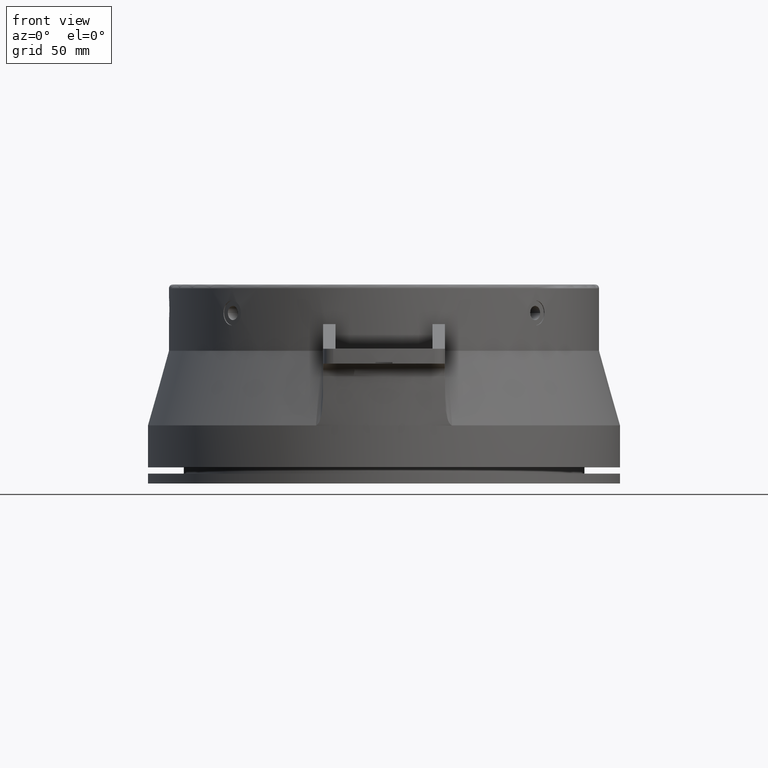
[diagram: clean part render]
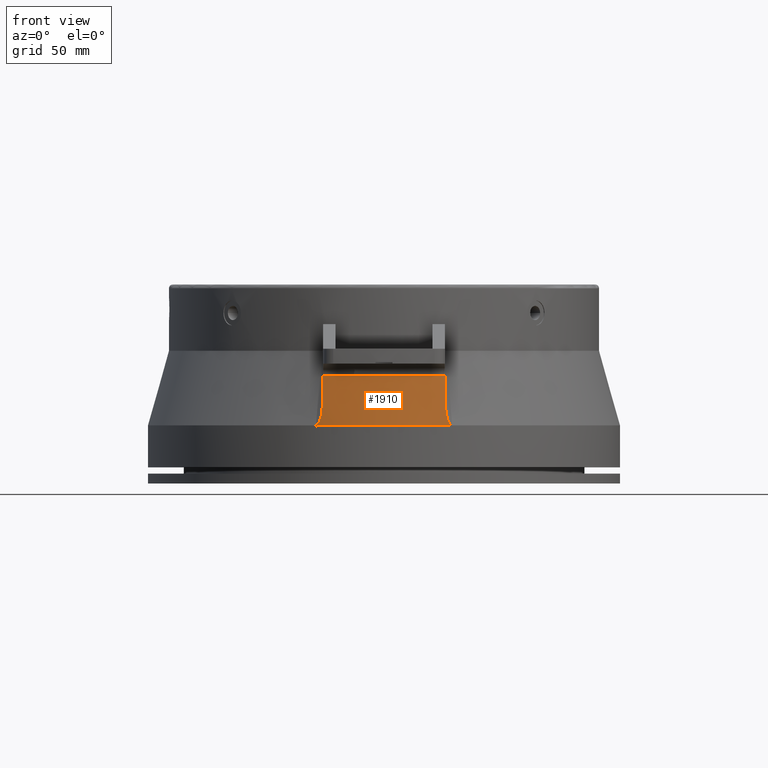
[diagram: same view with one face highlighted and labeled with its STEP entity id]
A machine part, front view. The second image highlights one B-rep face of the part: STEP entity #1910.
In plain terms, the highlighted conical surface has half-angle 0.72 deg.
Its self-contained STEP definition (entity closure, byte-faithful):
#447=CARTESIAN_POINT('',(0.E0,0.E0,-1.14E2));
#448=DIRECTION('',(0.E0,0.E0,-1.E0));
#449=DIRECTION('',(2.881513109847E-1,-9.575848902201E-1,0.E0));
#450=AXIS2_PLACEMENT_3D('',#447,#448,#449);
#452=CARTESIAN_POINT('',(-4.927189282601E1,-1.840168732729E2,
-7.412559506044E1));
#453=CARTESIAN_POINT('',(-4.927189282601E1,-1.839729857034E2,
-7.075039669329E1));
#454=CARTESIAN_POINT('',(-4.927189282601E1,-1.839290970838E2,
-6.737519833980E1));
#455=CARTESIAN_POINT('',(-4.927189282601E1,-1.838852074118E2,-6.4E1));
#457=CARTESIAN_POINT('',(0.E0,0.E0,-7.412559506044E1));
#458=DIRECTION('',(0.E0,0.E0,1.E0));
#459=DIRECTION('',(-2.586462503534E-1,-9.659721099380E-1,0.E0));
#460=AXIS2_PLACEMENT_3D('',#457,#458,#459);
#462=CARTESIAN_POINT('',(4.927189282601E1,-1.840168732729E2,-7.412559506044E1));
#463=CARTESIAN_POINT('',(4.927189282601E1,-1.839729857034E2,-7.075039669329E1));
#464=CARTESIAN_POINT('',(4.927189282601E1,-1.839290970838E2,-6.737519833980E1));
#465=CARTESIAN_POINT('',(4.927189282601E1,-1.838852074118E2,-6.4E1));
#467=CARTESIAN_POINT('',(-4.936022135901E1,-1.842148539848E2,
-9.117052137413E1));
#468=CARTESIAN_POINT('',(-4.936275388886E1,-1.842243055147E2,
-9.194954659659E1));
#469=CARTESIAN_POINT('',(-4.938722427807E1,-1.842370770525E2,
-9.343583555367E1));
#470=CARTESIAN_POINT('',(-4.946643944703E1,-1.842418751561E2,
-9.543851961199E1));
#471=CARTESIAN_POINT('',(-4.957705049600E1,-1.842356960701E2,
-9.724891391206E1));
#472=CARTESIAN_POINT('',(-4.971102670938E1,-1.842209173090E2,
-9.888773032615E1));
#473=CARTESIAN_POINT('',(-4.986302530540E1,-1.841992597248E2,
-1.003802037886E2));
#474=CARTESIAN_POINT('',(-5.002986918941E1,-1.841718479547E2,
-1.017500597064E2));
#475=CARTESIAN_POINT('',(-5.021078430044E1,-1.841391930582E2,
-1.030236272126E2));
#476=CARTESIAN_POINT('',(-5.040546425020E1,-1.841015360608E2,
-1.042164461202E2));
#477=CARTESIAN_POINT('',(-5.061108814689E1,-1.840595553720E2,
-1.053247020777E2));
#478=CARTESIAN_POINT('',(-5.082541242848E1,-1.840138427794E2,
-1.063493049520E2));
#479=CARTESIAN_POINT('',(-5.104610705530E1,-1.839650164738E2,
-1.072906590384E2));
#480=CARTESIAN_POINT('',(-5.127066002444E1,-1.839137544356E2,
-1.081490345887E2));
#481=CARTESIAN_POINT('',(-5.149678005388E1,-1.838607089374E2,
-1.089264351978E2));
#482=CARTESIAN_POINT('',(-5.172504748630E1,-1.838058522109E2,
-1.096337393959E2));
#483=CARTESIAN_POINT('',(-5.195720791249E1,-1.837488227047E2,
-1.102817950340E2));
#484=CARTESIAN_POINT('',(-5.219626341165E1,-1.836888925411E2,
-1.108813540732E2));
#485=CARTESIAN_POINT('',(-5.244814525993E1,-1.836245007277E2,
-1.114449047804E2));
#486=CARTESIAN_POINT('',(-5.271398488026E1,-1.835552216726E2,
-1.119692994043E2));
#487=CARTESIAN_POINT('',(-5.299401381358E1,-1.834808533548E2,
-1.124491998602E2));
#488=CARTESIAN_POINT('',(-5.328698897156E1,-1.834015677417E2,
-1.128759873115E2));
#489=CARTESIAN_POINT('',(-5.358260108530E1,-1.833200957245E2,
-1.132331874155E2));
#490=CARTESIAN_POINT('',(-5.388350092287E1,-1.832357054273E2,
-1.135252480154E2));
#491=CARTESIAN_POINT('',(-5.418816598591E1,-1.831487715138E2,
-1.137492292530E2));
#492=CARTESIAN_POINT('',(-5.448514341013E1,-1.830626099748E2,
-1.138998687410E2));
#493=CARTESIAN_POINT('',(-5.476820163912E1,-1.829792088098E2,
-1.139831211757E2));
#494=CARTESIAN_POINT('',(-5.494874521725E1,-1.829252412163E2,
-1.139999999974E2));
#495=CARTESIAN_POINT('',(-5.503690039805E1,-1.828987140319E2,
-1.139999999974E2));
#521=CARTESIAN_POINT('',(5.503690039807E1,-1.828987140320E2,-1.139999999987E2));
#537=CARTESIAN_POINT('',(-5.503690039805E1,-1.828987140319E2,
-1.139999999974E2));
#641=CARTESIAN_POINT('',(5.503690039807E1,-1.828987140320E2,-1.139999999987E2));
#642=CARTESIAN_POINT('',(5.494700461095E1,-1.829257649902E2,-1.139999999987E2));
#643=CARTESIAN_POINT('',(5.476119217287E1,-1.829813099173E2,-1.139827413909E2));
#644=CARTESIAN_POINT('',(5.445925392152E1,-1.830702034636E2,-1.138906251439E2));
#645=CARTESIAN_POINT('',(5.414892642696E1,-1.831600613590E2,-1.137248340195E2));
#646=CARTESIAN_POINT('',(5.384091577799E1,-1.832477449970E2,-1.134885734032E2));
#647=CARTESIAN_POINT('',(5.353225582078E1,-1.833340929338E2,-1.131783521970E2));
#648=CARTESIAN_POINT('',(5.322410232196E1,-1.834187309785E2,-1.127916448229E2));
#649=CARTESIAN_POINT('',(5.292121586509E1,-1.835003474263E2,-1.123327013970E2));
#650=CARTESIAN_POINT('',(5.262480051575E1,-1.835786538401E2,-1.118033820385E2));
#651=CARTESIAN_POINT('',(5.233551145278E1,-1.836535038741E2,-1.112041878571E2));
#652=CARTESIAN_POINT('',(5.205705151271E1,-1.837240001575E2,-1.105437296190E2));
#653=CARTESIAN_POINT('',(5.178647482190E1,-1.837909497749E2,-1.098158776030E2));
#654=CARTESIAN_POINT('',(5.152081899710E1,-1.838550659792E2,-1.090088107656E2));
#655=CARTESIAN_POINT('',(5.125935824035E1,-1.839164466771E2,-1.081127038731E2));
#656=CARTESIAN_POINT('',(5.100235796912E1,-1.839749058190E2,-1.071173914334E2));
#657=CARTESIAN_POINT('',(5.075149051053E1,-1.840299086795E2,-1.060155325643E2));
#658=CARTESIAN_POINT('',(5.050647761323E1,-1.840812923273E2,-1.047865571497E2));
#659=CARTESIAN_POINT('',(5.026918600093E1,-1.841283163377E2,-1.034107698890E2));
#660=CARTESIAN_POINT('',(5.004322252034E1,-1.841697849626E2,-1.018690408446E2));
#661=CARTESIAN_POINT('',(4.983405862282E1,-1.842040256188E2,-1.001430794642E2));
#662=CARTESIAN_POINT('',(4.964962657383E1,-1.842288280939E2,-9.822251046079E1));
#663=CARTESIAN_POINT('',(4.949911023198E1,-1.842416589716E2,-9.609607062101E1));
#664=CARTESIAN_POINT('',(4.939388200951E1,-1.842394524055E2,-9.375561492628E1));
#665=CARTESIAN_POINT('',(4.936309886685E1,-1.842255929902E2,-9.205566442588E1));
#666=CARTESIAN_POINT('',(4.936022135905E1,-1.842148539848E2,-9.117052137413E1));
#689=CARTESIAN_POINT('',(4.936022135905E1,-1.842148539848E2,-9.117052137413E1));
#697=DIRECTION('',(3.250639361116E-3,-1.213155125301E-2,-9.999211262934E-1));
#698=VECTOR('',#697,2.717266458290E1);
#699=CARTESIAN_POINT('',(4.927189282601E1,-1.838852074118E2,-6.4E1));
#700=LINE('',#699,#698);
#1420=CARTESIAN_POINT('',(-4.936022135901E1,-1.842148539848E2,
-9.117052137413E1));
#1426=DIRECTION('',(-3.250639359390E-3,-1.213155125348E-2,-9.999211262934E-1));
#1427=VECTOR('',#1426,2.717266458290E1);
#1428=CARTESIAN_POINT('',(-4.927189282601E1,-1.838852074118E2,-6.4E1));
#1429=LINE('',#1428,#1427);
#1599=CARTESIAN_POINT('',(-4.927189282601E1,-1.840168732729E2,
-7.412559506044E1));
#1600=CARTESIAN_POINT('',(4.927189282601E1,-1.840168732729E2,
-7.412559506044E1));
#1601=VERTEX_POINT('',#1599);
#1602=VERTEX_POINT('',#1600);
#1607=VERTEX_POINT('',#455);
#1608=VERTEX_POINT('',#465);
#1648=VERTEX_POINT('',#521);
#1649=VERTEX_POINT('',#689);
#1651=VERTEX_POINT('',#537);
#1654=VERTEX_POINT('',#1420);
#1888=CARTESIAN_POINT('',(0.E0,0.E0,-8.900000000016E1));
#1889=DIRECTION('',(0.E0,0.E0,-1.E0));
#1890=DIRECTION('',(-2.588190451025E-1,-9.659258262891E-1,0.E0));
#1891=AXIS2_PLACEMENT_3D('',#1888,#1889,#1890);
#1892=CONICAL_SURFACE('',#1891,1.906859875816E2,7.196256090159E-1);
#1893=ORIENTED_EDGE('',*,*,#1869,.T.);
#1895=ORIENTED_EDGE('',*,*,#1894,.F.);
#1897=ORIENTED_EDGE('',*,*,#1896,.F.);
#1899=ORIENTED_EDGE('',*,*,#1898,.F.);
#1901=ORIENTED_EDGE('',*,*,#1900,.T.);
#1903=ORIENTED_EDGE('',*,*,#1902,.T.);
#1905=ORIENTED_EDGE('',*,*,#1904,.T.);
#1907=ORIENTED_EDGE('',*,*,#1906,.F.);
#1908=EDGE_LOOP('',(#1893,#1895,#1897,#1899,#1901,#1903,#1905,#1907));
#1909=FACE_OUTER_BOUND('',#1908,.F.);
#451=CIRCLE('',#450,1.91E2);
#456=B_SPLINE_CURVE_WITH_KNOTS('',3,(#452,#453,#454,#455),.UNSPECIFIED.,.F.,.F.,
(4,4),(0.E0,1.E0),.UNSPECIFIED.);
#461=CIRCLE('',#460,1.904991576669E2);
#466=B_SPLINE_CURVE_WITH_KNOTS('',3,(#462,#463,#464,#465),.UNSPECIFIED.,.F.,.F.,
(4,4),(0.E0,1.E0),.UNSPECIFIED.);
#496=B_SPLINE_CURVE_WITH_KNOTS('',3,(#467,#468,#469,#470,#471,#472,#473,#474,
#475,#476,#477,#478,#479,#480,#481,#482,#483,#484,#485,#486,#487,#488,#489,#490,
#491,#492,#493,#494,#495),.UNSPECIFIED.,.F.,.F.,(4,1,1,1,1,1,1,1,1,1,1,1,1,1,1,
1,1,1,1,1,1,1,1,1,1,1,4),(0.E0,3.846153846154E-2,7.692307692308E-2,
1.153846153846E-1,1.538461538462E-1,1.923076923077E-1,2.307692307692E-1,
2.692307692308E-1,3.076923076923E-1,3.461538461538E-1,3.846153846154E-1,
4.230769230769E-1,4.615384615385E-1,5.E-1,5.384615384615E-1,5.769230769231E-1,
6.153846153846E-1,6.538461538462E-1,6.923076923077E-1,7.307692307692E-1,
7.692307692308E-1,8.076923076923E-1,8.461538461538E-1,8.846153846154E-1,
9.230769230769E-1,9.615384615385E-1,1.E0),.UNSPECIFIED.);
#667=B_SPLINE_CURVE_WITH_KNOTS('',3,(#641,#642,#643,#644,#645,#646,#647,#648,
#649,#650,#651,#652,#653,#654,#655,#656,#657,#658,#659,#660,#661,#662,#663,#664,
#665,#666),.UNSPECIFIED.,.F.,.F.,(4,1,1,1,1,1,1,1,1,1,1,1,1,1,1,1,1,1,1,1,1,1,1,
4),(0.E0,4.347826086957E-2,8.695652173913E-2,1.304347826087E-1,
1.739130434783E-1,2.173913043478E-1,2.608695652174E-1,3.043478260870E-1,
3.478260869565E-1,3.913043478261E-1,4.347826086957E-1,4.782608695652E-1,
5.217391304348E-1,5.652173913043E-1,6.086956521739E-1,6.521739130435E-1,
6.956521739130E-1,7.391304347826E-1,7.826086956522E-1,8.260869565217E-1,
8.695652173913E-1,9.130434782609E-1,9.565217391304E-1,1.E0),.UNSPECIFIED.);
#1869=EDGE_CURVE('',#1648,#1651,#451,.T.);
#1894=EDGE_CURVE('',#1654,#1651,#496,.T.);
#1896=EDGE_CURVE('',#1607,#1654,#1429,.T.);
#1898=EDGE_CURVE('',#1601,#1607,#456,.T.);
#1900=EDGE_CURVE('',#1601,#1602,#461,.T.);
#1902=EDGE_CURVE('',#1602,#1608,#466,.T.);
#1904=EDGE_CURVE('',#1608,#1649,#700,.T.);
#1906=EDGE_CURVE('',#1648,#1649,#667,.T.);
#1910=ADVANCED_FACE('',(#1909),#1892,.T.);